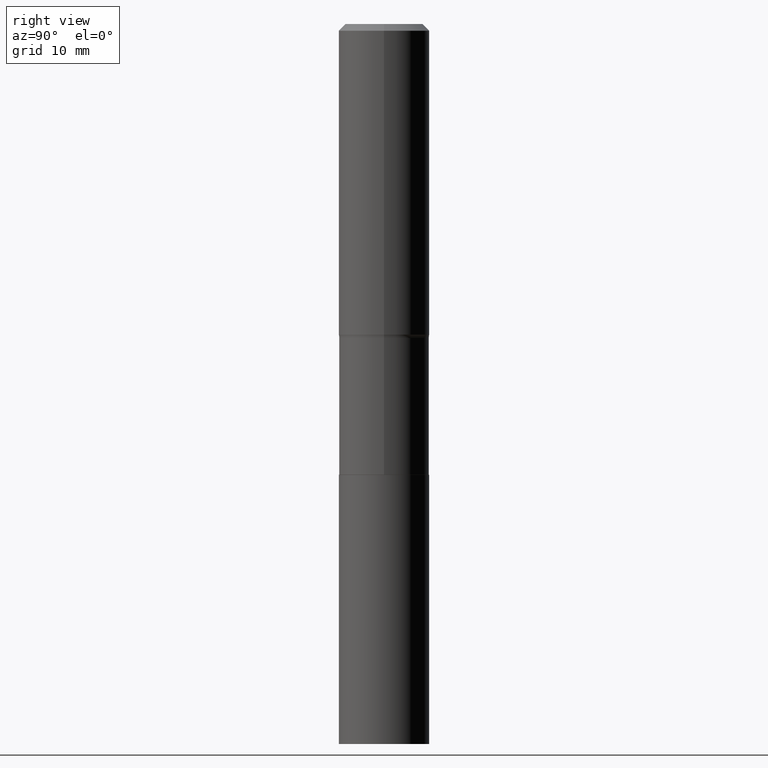
[diagram: clean part render]
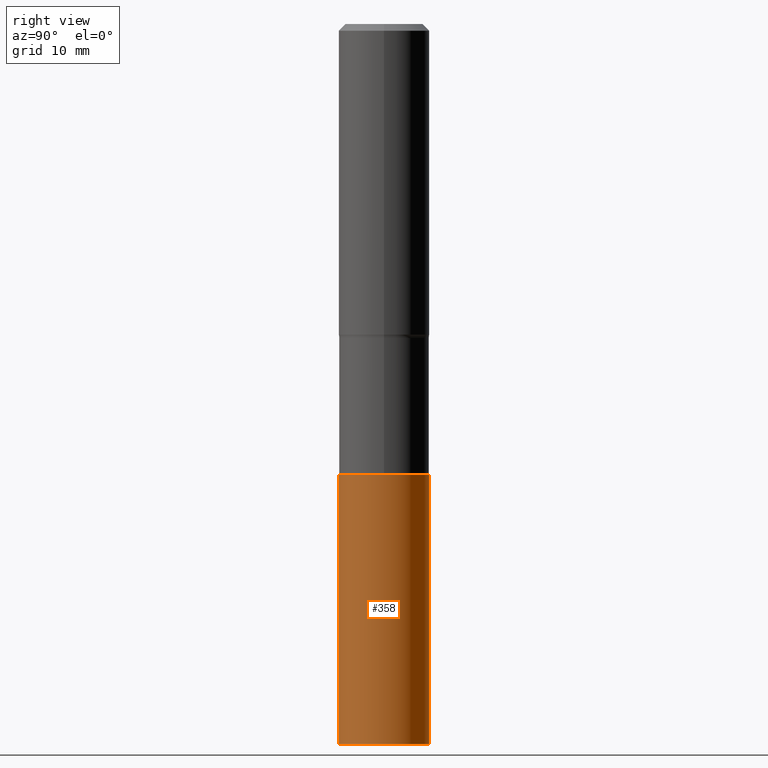
[diagram: same view with one face highlighted and labeled with its STEP entity id]
A machine part, right view. The second image highlights one B-rep face of the part: STEP entity #358.
In plain terms, the highlighted cylindrical surface (partial cylindrical patch) has radius 5.95 mm, axis along (-0, 0, 1).
Its self-contained STEP definition (entity closure, byte-faithful):
#10 = VERTEX_POINT ( 'NONE', #191 ) ;
#37 = CARTESIAN_POINT ( 'NONE',  ( 1.664446358518108739E-15, 0.2342499999999869686, -3.740200000000001967 ) ) ;
#40 = FACE_OUTER_BOUND ( 'NONE', #169, .T. ) ;
#43 = CIRCLE ( 'NONE', #311, 0.2342500000000000138 ) ;
#47 = LINE ( 'NONE', #197, #118 ) ;
#86 = ORIENTED_EDGE ( 'NONE', *, *, #87, .F. ) ;
#87 = EDGE_CURVE ( 'NONE', #283, #10, #47, .T. ) ;
#93 = CARTESIAN_POINT ( 'NONE',  ( 9.146530392520179106E-29, -1.305885574031301935E-14, -3.740200000000001079 ) ) ;
#101 = ORIENTED_EDGE ( 'NONE', *, *, #163, .F. ) ;
#102 = CYLINDRICAL_SURFACE ( 'NONE', #463, 0.2342500000000000138 ) ;
#118 = VECTOR ( 'NONE', #193, 39.37007874015748143 ) ;
#128 = CARTESIAN_POINT ( 'NONE',  ( 1.664446358518126094E-15, 0.2342499999999918259, -2.341200000000001058 ) ) ;
#136 = ORIENTED_EDGE ( 'NONE', *, *, #280, .T. ) ;
#163 = EDGE_CURVE ( 'NONE', #10, #205, #390, .T. ) ;
#169 = EDGE_LOOP ( 'NONE', ( #422, #136, #101, #86 ) ) ;
#183 = EDGE_CURVE ( 'NONE', #283, #387, #43, .T. ) ;
#191 = CARTESIAN_POINT ( 'NONE',  ( -1.635759007247950422E-15, -0.2342500000000081739, -2.341199999999999282 ) ) ;
#193 = DIRECTION ( 'NONE',  ( -2.445460202630116431E-29, 3.491493659623618678E-15, 1.000000000000000000 ) ) ;
#197 = CARTESIAN_POINT ( 'NONE',  ( -1.635759007247950422E-15, -0.2342500000000081739, -2.341199999999999282 ) ) ;
#201 = LINE ( 'NONE', #313, #367 ) ;
#205 = VERTEX_POINT ( 'NONE', #128 ) ;
#209 = DIRECTION ( 'NONE',  ( -2.445460202630116151E-29, 3.491493659623618678E-15, 1.000000000000000000 ) ) ;
#233 = CARTESIAN_POINT ( 'NONE',  ( 5.725331569040642181E-29, -8.174256110499573321E-15, -2.341200000000000170 ) ) ;
#276 = DIRECTION ( 'NONE',  ( -2.445460202630116151E-29, 3.491493659623618678E-15, 1.000000000000000000 ) ) ;
#280 = EDGE_CURVE ( 'NONE', #387, #205, #201, .T. ) ;
#283 = VERTEX_POINT ( 'NONE', #347 ) ;
#311 = AXIS2_PLACEMENT_3D ( 'NONE', #93, #209, #425 ) ;
#313 = CARTESIAN_POINT ( 'NONE',  ( 1.664446358518091778E-15, 0.2342499999999918259, -2.341200000000001058 ) ) ;
#324 = DIRECTION ( 'NONE',  ( -6.982962677686265133E-15, -1.000000000000000000, 3.498631368620187579E-15 ) ) ;
#326 = CARTESIAN_POINT ( 'NONE',  ( 5.725331569040642181E-29, -8.174256110499573321E-15, -2.341200000000000170 ) ) ;
#347 = CARTESIAN_POINT ( 'NONE',  ( -1.635759007247916303E-15, -0.2342500000000130589, -3.740200000000000635 ) ) ;
#358 = ADVANCED_FACE ( 'NONE', ( #40 ), #102, .T. ) ;
#359 = DIRECTION ( 'NONE',  ( -2.445460202630116151E-29, 3.491493659623618678E-15, 1.000000000000000000 ) ) ;
#367 = VECTOR ( 'NONE', #458, 39.37007874015748143 ) ;
#374 = AXIS2_PLACEMENT_3D ( 'NONE', #233, #276, #421 ) ;
#387 = VERTEX_POINT ( 'NONE', #37 ) ;
#390 = CIRCLE ( 'NONE', #374, 0.2342500000000000138 ) ;
#421 = DIRECTION ( 'NONE',  ( -6.982962677686265133E-15, -1.000000000000000000, 3.498631368620187579E-15 ) ) ;
#422 = ORIENTED_EDGE ( 'NONE', *, *, #183, .T. ) ;
#425 = DIRECTION ( 'NONE',  ( -6.982962677686265133E-15, -1.000000000000000000, 2.332420912413458386E-15 ) ) ;
#458 = DIRECTION ( 'NONE',  ( -2.445460202630116431E-29, 3.491493659623618678E-15, 1.000000000000000000 ) ) ;
#463 = AXIS2_PLACEMENT_3D ( 'NONE', #326, #359, #324 ) ;